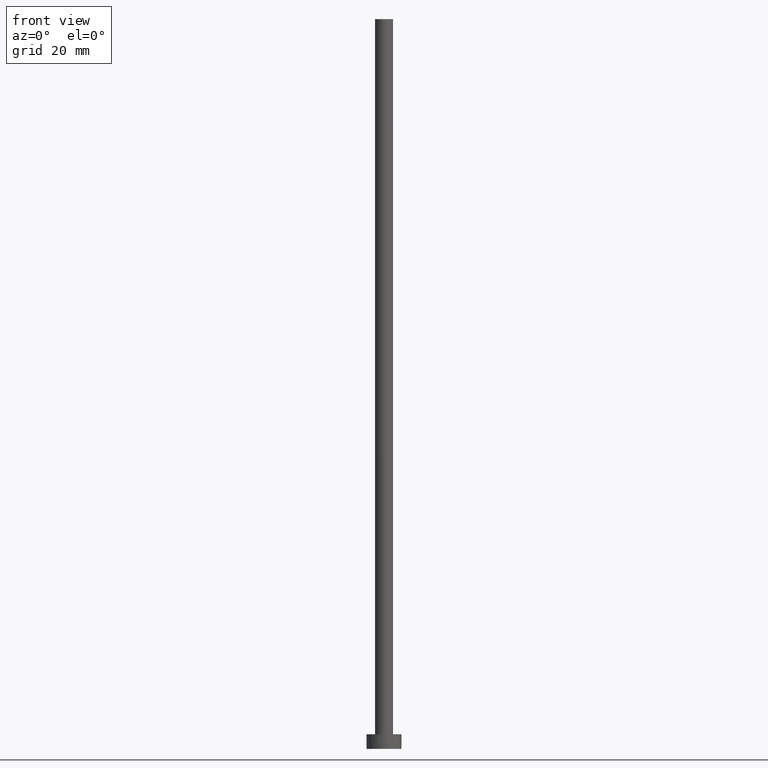
[diagram: clean part render]
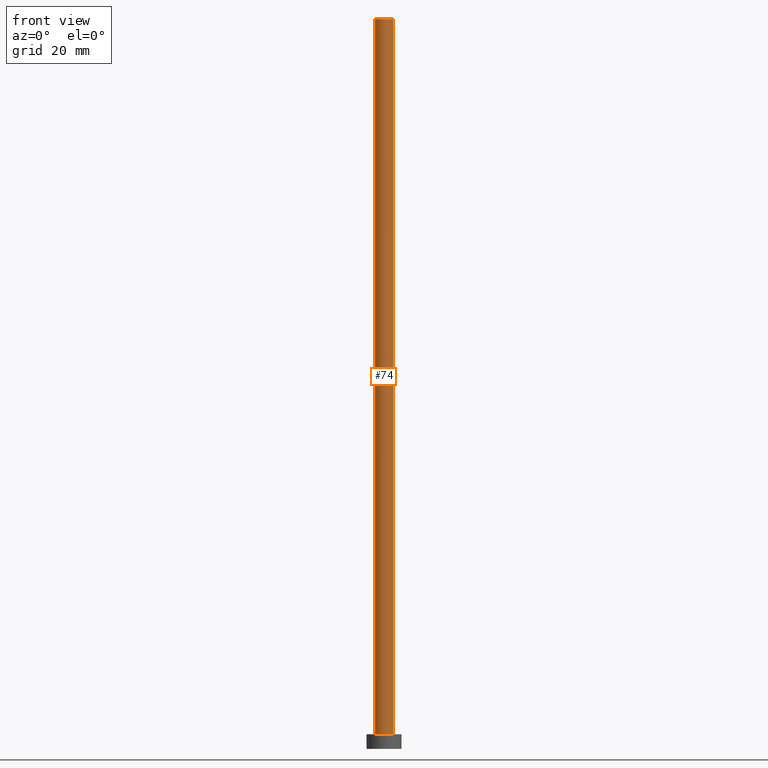
[diagram: same view with one face highlighted and labeled with its STEP entity id]
A machine part, front view. The second image highlights one B-rep face of the part: STEP entity #74.
In plain terms, the highlighted cylindrical surface (edge-blend (fillet) strip) has radius 3.075 mm, axis along (-0, -0, -1).
Its self-contained STEP definition (entity closure, byte-faithful):
#3 = FACE_OUTER_BOUND ( 'NONE', #122, .T. ) ;
#7 = DIRECTION ( 'NONE',  ( 1.000000000000000000, 0.000000000000000000, 0.000000000000000000 ) ) ;
#10 = CIRCLE ( 'NONE', #151, 3.075000000000000178 ) ;
#18 = LINE ( 'NONE', #164, #72 ) ;
#21 = VERTEX_POINT ( 'NONE', #62 ) ;
#34 = AXIS2_PLACEMENT_3D ( 'NONE', #174, #105, #107 ) ;
#35 = CARTESIAN_POINT ( 'NONE',  ( 3.075000000000000178, 3.765788907378111032E-16, 5.000000000000000000 ) ) ;
#43 = AXIS2_PLACEMENT_3D ( 'NONE', #202, #155, #7 ) ;
#52 = EDGE_CURVE ( 'NONE', #121, #160, #101, .T. ) ;
#60 = CYLINDRICAL_SURFACE ( 'NONE', #34, 3.075000000000000178 ) ;
#62 = CARTESIAN_POINT ( 'NONE',  ( -3.075000000000000178, 0.000000000000000000, 5.000000000000000000 ) ) ;
#71 = CARTESIAN_POINT ( 'NONE',  ( 0.000000000000000000, 0.000000000000000000, 5.000000000000000000 ) ) ;
#72 = VECTOR ( 'NONE', #252, 1000.000000000000000 ) ;
#74 = ADVANCED_FACE ( 'NONE', ( #3 ), #60, .T. ) ;
#101 = LINE ( 'NONE', #103, #223 ) ;
#103 = CARTESIAN_POINT ( 'NONE',  ( 3.075000000000000178, 3.765788907378111032E-16, 250.0000000000000000 ) ) ;
#105 = DIRECTION ( 'NONE',  ( -0.000000000000000000, -0.000000000000000000, -1.000000000000000000 ) ) ;
#106 = CIRCLE ( 'NONE', #43, 3.075000000000000178 ) ;
#107 = DIRECTION ( 'NONE',  ( -1.000000000000000000, 0.000000000000000000, 0.000000000000000000 ) ) ;
#121 = VERTEX_POINT ( 'NONE', #145 ) ;
#122 = EDGE_LOOP ( 'NONE', ( #237, #216, #196, #138 ) ) ;
#138 = ORIENTED_EDGE ( 'NONE', *, *, #233, .T. ) ;
#145 = CARTESIAN_POINT ( 'NONE',  ( 3.075000000000000178, 3.765788907378111032E-16, 250.0000000000000000 ) ) ;
#151 = AXIS2_PLACEMENT_3D ( 'NONE', #71, #253, #175 ) ;
#155 = DIRECTION ( 'NONE',  ( 0.000000000000000000, 0.000000000000000000, 1.000000000000000000 ) ) ;
#160 = VERTEX_POINT ( 'NONE', #35 ) ;
#164 = CARTESIAN_POINT ( 'NONE',  ( -3.075000000000000178, 0.000000000000000000, 250.0000000000000000 ) ) ;
#165 = CARTESIAN_POINT ( 'NONE',  ( -3.075000000000000178, 0.000000000000000000, 250.0000000000000000 ) ) ;
#174 = CARTESIAN_POINT ( 'NONE',  ( 0.000000000000000000, 0.000000000000000000, 250.0000000000000000 ) ) ;
#175 = DIRECTION ( 'NONE',  ( 1.000000000000000000, 0.000000000000000000, 0.000000000000000000 ) ) ;
#195 = VERTEX_POINT ( 'NONE', #165 ) ;
#196 = ORIENTED_EDGE ( 'NONE', *, *, #229, .T. ) ;
#202 = CARTESIAN_POINT ( 'NONE',  ( 0.000000000000000000, 0.000000000000000000, 250.0000000000000000 ) ) ;
#216 = ORIENTED_EDGE ( 'NONE', *, *, #251, .F. ) ;
#223 = VECTOR ( 'NONE', #244, 1000.000000000000000 ) ;
#229 = EDGE_CURVE ( 'NONE', #195, #21, #18, .T. ) ;
#233 = EDGE_CURVE ( 'NONE', #21, #160, #10, .T. ) ;
#237 = ORIENTED_EDGE ( 'NONE', *, *, #52, .F. ) ;
#244 = DIRECTION ( 'NONE',  ( -0.000000000000000000, -0.000000000000000000, -1.000000000000000000 ) ) ;
#251 = EDGE_CURVE ( 'NONE', #195, #121, #106, .T. ) ;
#252 = DIRECTION ( 'NONE',  ( -0.000000000000000000, -0.000000000000000000, -1.000000000000000000 ) ) ;
#253 = DIRECTION ( 'NONE',  ( 0.000000000000000000, 0.000000000000000000, 1.000000000000000000 ) ) ;